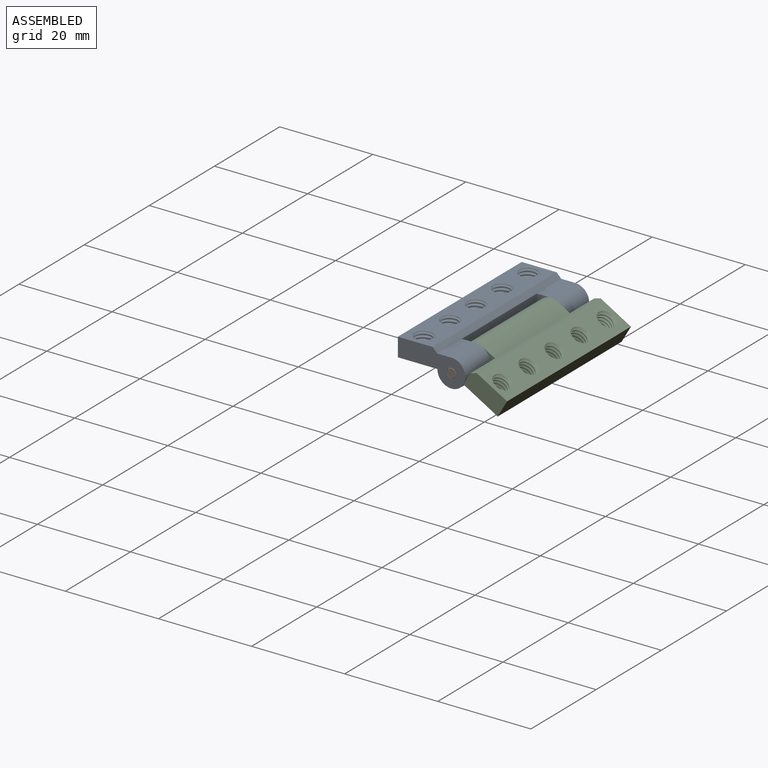
[diagram: assembled view]
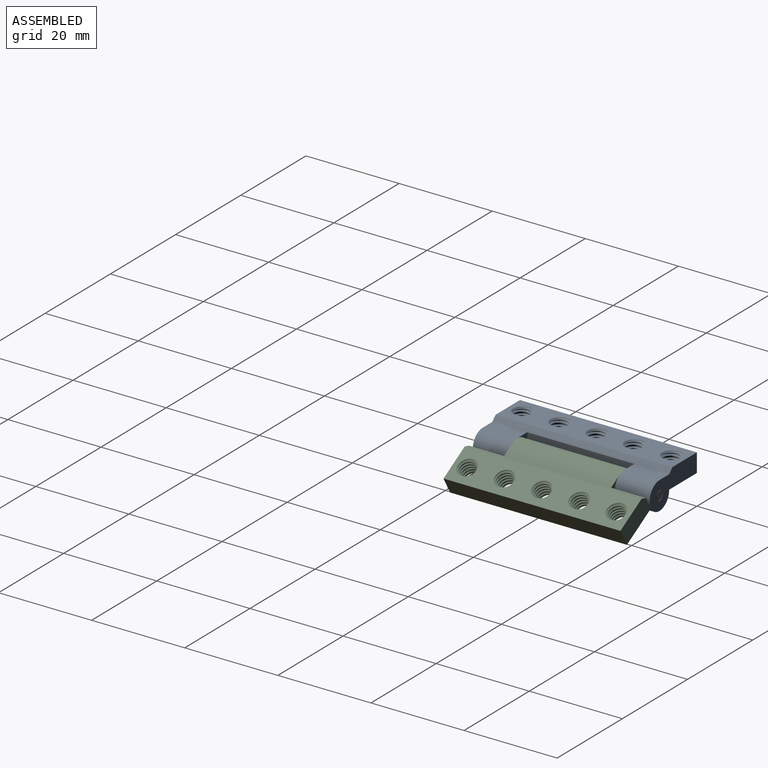
[diagram: assembled view, second angle]
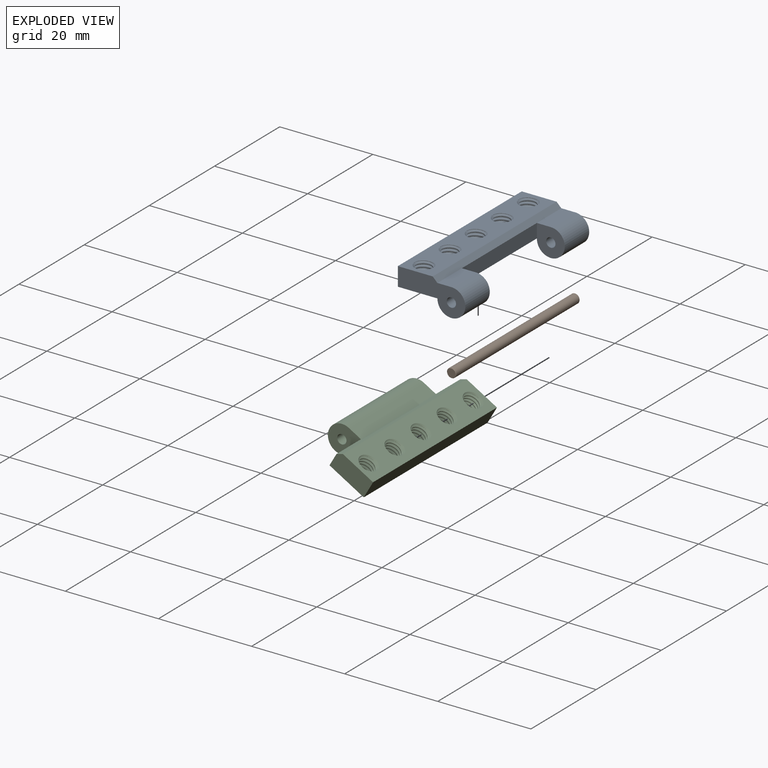
[diagram: exploded view]
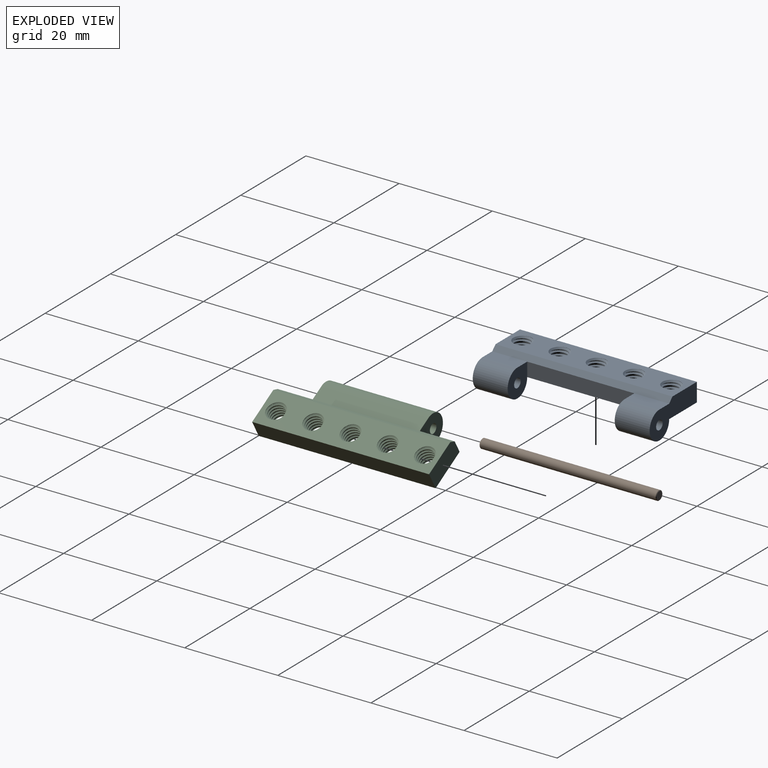
[diagram: exploded view, second angle]
ASSEMBLY  parts=3 mates=2
PART A: 45 faces, bbox 14.5x38x7.2 mm
  f0: cylinder r=2mm len=4mm, axis (0,0,1), area 6.3mm2, adj f26,f29,f43,f44
  f1: cylinder r=2mm len=4mm, axis (0,0,1), area 6.3mm2, adj f26,f29,f41,f42
  f2: cylinder r=2mm len=4mm, axis (0,0,1), area 6.3mm2, adj f26,f29,f39,f40
  f3: cylinder r=2mm len=4mm, axis (0,0,1), area 6.3mm2, adj f26,f29,f37,f38
  f4: cylinder r=2mm len=4mm, axis (0,0,1), area 6.3mm2, adj f26,f29,f35,f36
  f5: cylinder r=1.65mm len=3.3mm, axis (0,0,-1), area 10.2mm2, adj f14,f15,f35,f36
  f6: cylinder r=1.65mm len=3.3mm, axis (0,0,-1), area 10.2mm2, adj f16,f17,f37,f38
  f7: cylinder r=1.65mm len=3.3mm, axis (0,0,-1), area 10.2mm2, adj f22,f23,f43,f44
  f8: cylinder r=1.65mm len=3.3mm, axis (0,0,-1), area 10.2mm2, adj f20,f21,f41,f42
  f9: cylinder r=1.65mm len=3.3mm, axis (0,0,-1), area 10.2mm2, adj f18,f19,f39,f40
  f10: cylinder r=1mm len=7.5mm, axis (0,-1,0), area 47.1mm2, adj f25,f28
  f11: cylinder r=3mm len=7.5mm, axis (0,-1,0), area 106mm2, adj f25,f28,f29,f32
  f12: cylinder r=1mm len=7.5mm, axis (0,-1,0), area 47.1mm2, adj f24,f27
  f13: cylinder r=3mm len=7.5mm, axis (0,-1,0), area 106mm2, adj f24,f27,f29,f33
  f14: cone r=2mm half-angle=45deg, axis (0,0,1), area 3.4mm2, adj f5,f26,f35,f36
  f15: cone r=1.65mm half-angle=45deg, axis (0,0,-1), area 3.4mm2, adj f5,f29,f35,f36
  f16: cone r=2mm half-angle=45deg, axis (0,0,1), area 3.4mm2, adj f6,f26,f37,f38
  f17: cone r=1.65mm half-angle=45deg, axis (0,0,-1), area 3.4mm2, adj f6,f29,f37,f38
  f18: cone r=2mm half-angle=45deg, axis (0,0,1), area 3.4mm2, adj f9,f26,f39,f40
  f19: cone r=1.65mm half-angle=45deg, axis (0,0,-1), area 3.4mm2, adj f9,f29,f39,f40
  f20: cone r=2mm half-angle=45deg, axis (0,0,1), area 3.4mm2, adj f8,f26,f41,f42
  f21: cone r=1.65mm half-angle=45deg, axis (0,0,-1), area 3.4mm2, adj f8,f29,f41,f42
  f22: cone r=2mm half-angle=45deg, axis (0,0,1), area 3.4mm2, adj f7,f26,f43,f44
  f23: cone r=1.65mm half-angle=45deg, axis (0,0,-1), area 3.4mm2, adj f7,f29,f43,f44
  f24: plane 14.5x7mm, normal (0,1,0), area 60.6mm2, adj f12,f13,f26,f29,f30,f33,f34
  f25: plane 14.5x7mm, normal (0,-1,0), area 60.6mm2, adj f10,f11,f26,f29,f30,f32,f34
  f26: plane 38x7.5mm, normal (0,0,1), area 222.2mm2, adj f0,f1,f2,f3,f4,f14,f16,f18
  f27: plane 6x6mm, normal (0,-1,0), area 27.1mm2, adj f12,f13,f31,f33
  f28: plane 6x6mm, normal (0,1,0), area 27.1mm2, adj f10,f11,f31,f32
  f29: plane 38x8.5mm, normal (0,0,-1), area 260.2mm2, adj f0,f1,f2,f3,f4,f11,f13,f15
  f30: plane 38x4mm, normal (-1,0,0), area 152mm2, adj f24,f25,f26,f29
  f31: plane 23x3mm, normal (1,0,0), area 69mm2, adj f27,f28,f29,f34
  f32: plane 7.5x3mm, normal (0,0,1), area 22.5mm2, adj f11,f25,f28,f34
  f33: plane 7.5x3mm, normal (0,0,1), area 22.5mm2, adj f13,f24,f27,f34
  f34: plane 38x1mm, normal (0.71,0,0.71), area 53.7mm2, adj f24,f25,f26,f31,f32,f33
  f35: bspline ~4.58x4.31mm, area 24.3mm2, adj f4,f5,f14,f15
  f36: bspline ~4.58x4.31mm, area 24.3mm2, adj f4,f5,f14,f15
  f37: bspline ~4.58x4.31mm, area 24.3mm2, adj f3,f6,f16,f17
  f38: bspline ~4.58x4.31mm, area 24.3mm2, adj f3,f6,f16,f17
  f39: bspline ~4.58x4.31mm, area 24.3mm2, adj f2,f9,f18,f19
  f40: bspline ~4.58x4.31mm, area 24.3mm2, adj f2,f9,f18,f19
  f41: bspline ~4.58x4.31mm, area 24.3mm2, adj f1,f8,f20,f21
  f42: bspline ~4.58x4.31mm, area 24.3mm2, adj f1,f8,f20,f21
  f43: bspline ~4.58x4.31mm, area 24.3mm2, adj f0,f7,f22,f23
  f44: bspline ~4.58x4.31mm, area 24.3mm2, adj f0,f7,f22,f23
PART B: 5 faces, bbox 2x38x2 mm
  f0: cone r=0.9mm half-angle=45deg, axis (0,-1,0), area 0.8mm2, adj f2,f3
  f1: cone r=1mm half-angle=45deg, axis (0,1,0), area 0.8mm2, adj f2,f4
  f2: cylinder r=1mm len=37.8mm, axis (0,-1,0), area 237.5mm2, adj f0,f1
  f3: plane 1.8x1.8mm, normal (0,1,0), area 2.5mm2, adj f0
  f4: plane 1.8x1.8mm, normal (0,-1,0), area 2.5mm2, adj f1
PART C: 43 faces, bbox 14.5x38x7.2 mm
  f0: cylinder r=2mm len=4mm, axis (0,0,1), area 6.3mm2, adj f25,f27,f41,f42
  f1: cylinder r=2mm len=4mm, axis (0,0,1), area 6.3mm2, adj f25,f27,f39,f40
  f2: cylinder r=2mm len=4mm, axis (0,0,1), area 6.3mm2, adj f25,f27,f37,f38
  f3: cylinder r=2mm len=4mm, axis (0,0,1), area 6.3mm2, adj f25,f27,f35,f36
  f4: cylinder r=2mm len=4mm, axis (0,0,1), area 6.3mm2, adj f25,f27,f33,f34
  f5: cylinder r=1.65mm len=3.3mm, axis (0,0,-1), area 10.2mm2, adj f12,f13,f33,f34
  f6: cylinder r=1.65mm len=3.3mm, axis (0,0,-1), area 10.2mm2, adj f20,f21,f41,f42
  f7: cylinder r=1.65mm len=3.3mm, axis (0,0,-1), area 10.2mm2, adj f14,f15,f35,f36
  f8: cylinder r=1.65mm len=3.3mm, axis (0,0,-1), area 10.2mm2, adj f16,f17,f37,f38
  f9: cylinder r=1.65mm len=3.3mm, axis (0,0,-1), area 10.2mm2, adj f18,f19,f39,f40
  f10: cylinder r=1mm len=23mm, axis (0,-1,0), area 144.5mm2, adj f29,f30
  f11: cylinder r=3mm len=23mm, axis (0,-1,0), area 325.2mm2, adj f25,f29,f30,f31
  f12: cone r=2mm half-angle=45deg, axis (0,0,1), area 3.4mm2, adj f5,f27,f33,f34
  f13: cone r=1.65mm half-angle=45deg, axis (0,0,-1), area 3.4mm2, adj f5,f25,f33,f34
  f14: cone r=2mm half-angle=45deg, axis (0,0,1), area 3.4mm2, adj f7,f27,f35,f36
  f15: cone r=1.65mm half-angle=45deg, axis (0,0,-1), area 3.4mm2, adj f7,f25,f35,f36
  f16: cone r=2mm half-angle=45deg, axis (0,0,1), area 3.4mm2, adj f8,f27,f37,f38
  f17: cone r=1.65mm half-angle=45deg, axis (0,0,-1), area 3.4mm2, adj f8,f25,f37,f38
  f18: cone r=2mm half-angle=45deg, axis (0,0,1), area 3.4mm2, adj f9,f27,f39,f40
  f19: cone r=1.65mm half-angle=45deg, axis (0,0,-1), area 3.4mm2, adj f9,f25,f39,f40
  f20: cone r=2mm half-angle=45deg, axis (0,0,1), area 3.4mm2, adj f6,f27,f41,f42
  f21: cone r=1.65mm half-angle=45deg, axis (0,0,-1), area 3.4mm2, adj f6,f25,f41,f42
  f22: plane 7.5x3mm, normal (1,0,0), area 22.5mm2, adj f23,f25,f29,f32
  f23: plane 8.5x4mm, normal (0,1,0), area 33.5mm2, adj f22,f25,f26,f27,f32
  f24: plane 8.5x4mm, normal (0,-1,0), area 33.5mm2, adj f25,f26,f27,f28,f32
  f25: plane 38x8.5mm, normal (0,0,-1), area 260.2mm2, adj f0,f1,f2,f3,f4,f11,f13,f15
  f26: plane 38x4mm, normal (-1,0,0), area 152mm2, adj f23,f24,f25,f27
  f27: plane 38x7.5mm, normal (0,0,1), area 222.2mm2, adj f0,f1,f2,f3,f4,f12,f14,f16
  f28: plane 7.5x3mm, normal (1,0,0), area 22.5mm2, adj f24,f25,f30,f32
  f29: plane 6x6mm, normal (0,1,0), area 27.1mm2, adj f10,f11,f22,f31
  f30: plane 6x6mm, normal (0,-1,0), area 27.1mm2, adj f10,f11,f28,f31
  f31: plane 23x3mm, normal (0,0,1), area 69mm2, adj f11,f29,f30,f32
  f32: plane 38x1mm, normal (0.71,0,0.71), area 53.7mm2, adj f22,f23,f24,f27,f28,f31
  f33: bspline ~4.62x4.31mm, area 25.2mm2, adj f4,f5,f12,f13
  f34: bspline ~4.22x4mm, area 24.9mm2, adj f4,f5,f12,f13
  f35: bspline ~4.62x4.31mm, area 25.2mm2, adj f3,f7,f14,f15
  f36: bspline ~4.22x4mm, area 24.9mm2, adj f3,f7,f14,f15
  f37: bspline ~4.62x4.31mm, area 25.2mm2, adj f2,f8,f16,f17
  f38: bspline ~4.22x4mm, area 24.9mm2, adj f2,f8,f16,f17
  f39: bspline ~4.62x4.31mm, area 25.2mm2, adj f1,f9,f18,f19
  f40: bspline ~4.22x4mm, area 24.9mm2, adj f1,f9,f18,f19
  f41: bspline ~4.62x4.31mm, area 25.2mm2, adj f0,f6,f20,f21
  f42: bspline ~4.22x4mm, area 24.9mm2, adj f0,f6,f20,f21
PLACE A t=(11.5,-38,-4)mm
PLACE B t=(11.5,-38,-4)mm
PLACE C rot(axis=(-0.26,0,-0.97),180deg) t=(11.5,0,-4)mm
MATE fastened A.f10 <-> B.f0  axis (0,1,0) through (11.5,0,-4)mm
MATE revolute A.f10 <-> C.f10  axis (0,1,0) through (11.5,-30.5,-4)mm
